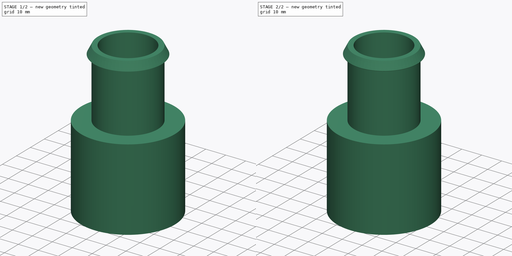
[diagram: build sequence overview — one tinted view per stage of 2, left to right]
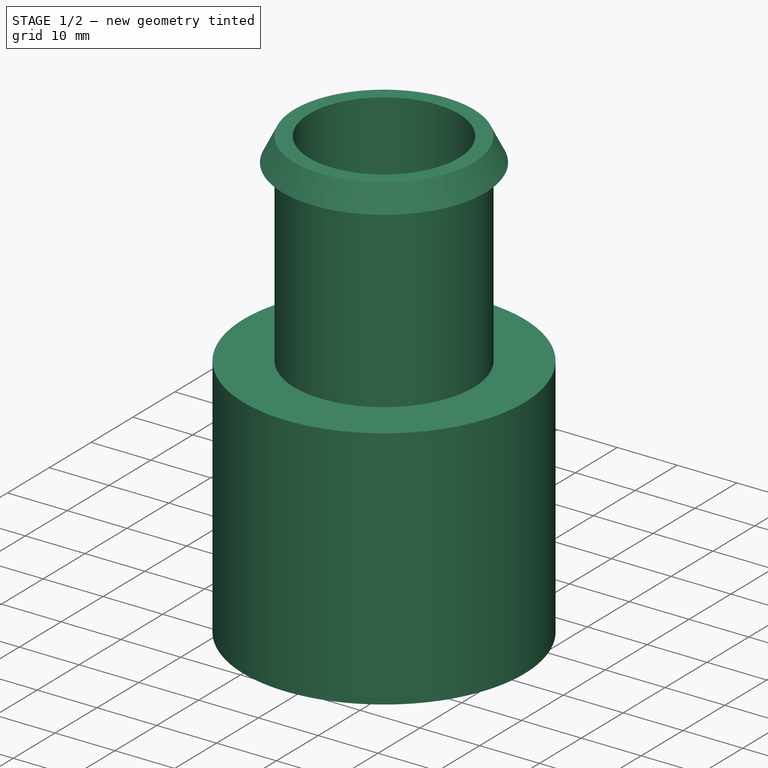
[diagram: stage 1 of 2 — iso view after this stage's code; geometry added in this stage tinted green]
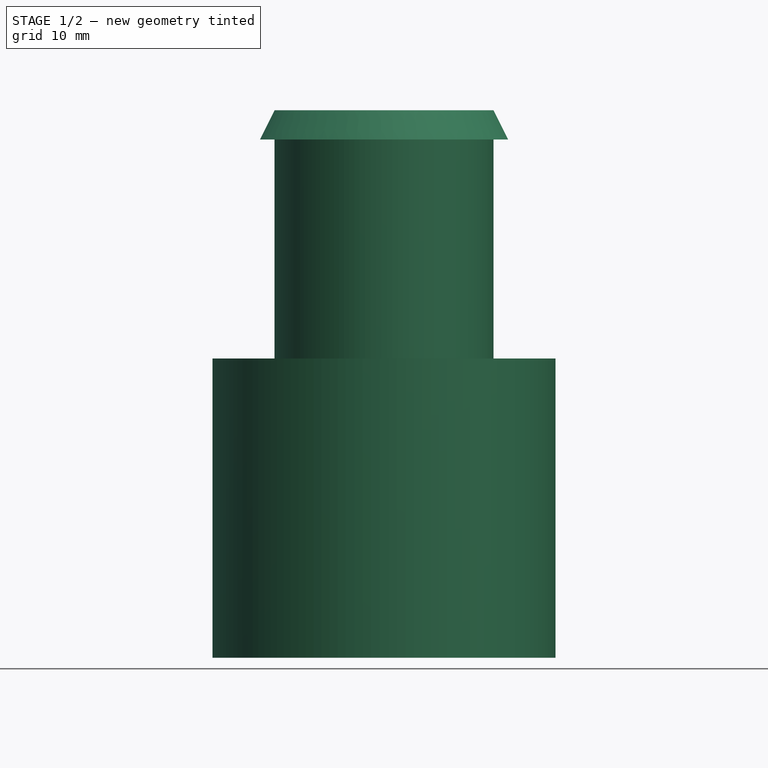
[diagram: stage 1 of 2 — front view after this stage's code; geometry added in this stage tinted green]
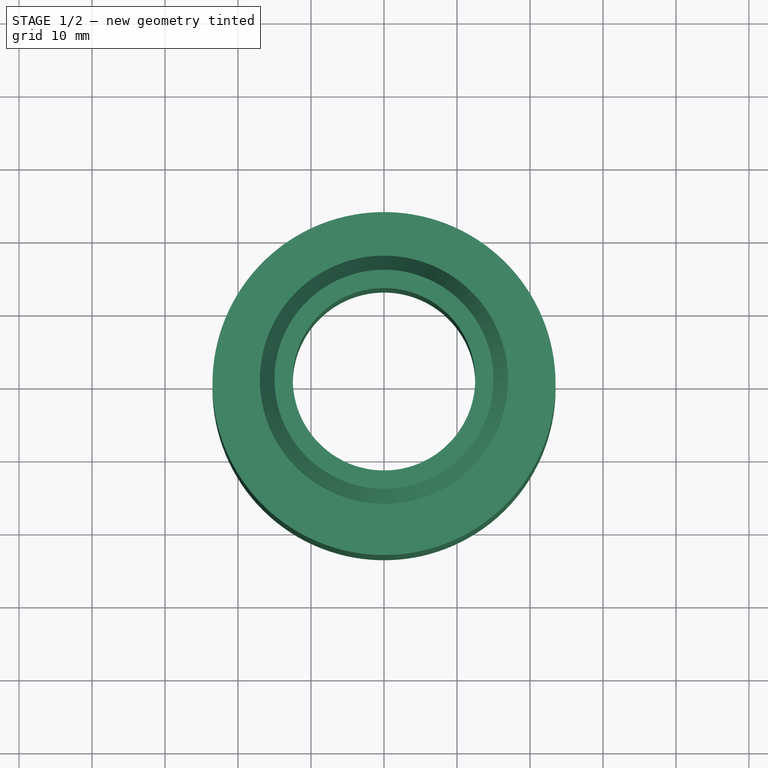
[diagram: stage 1 of 2 — top view after this stage's code; geometry added in this stage tinted green]
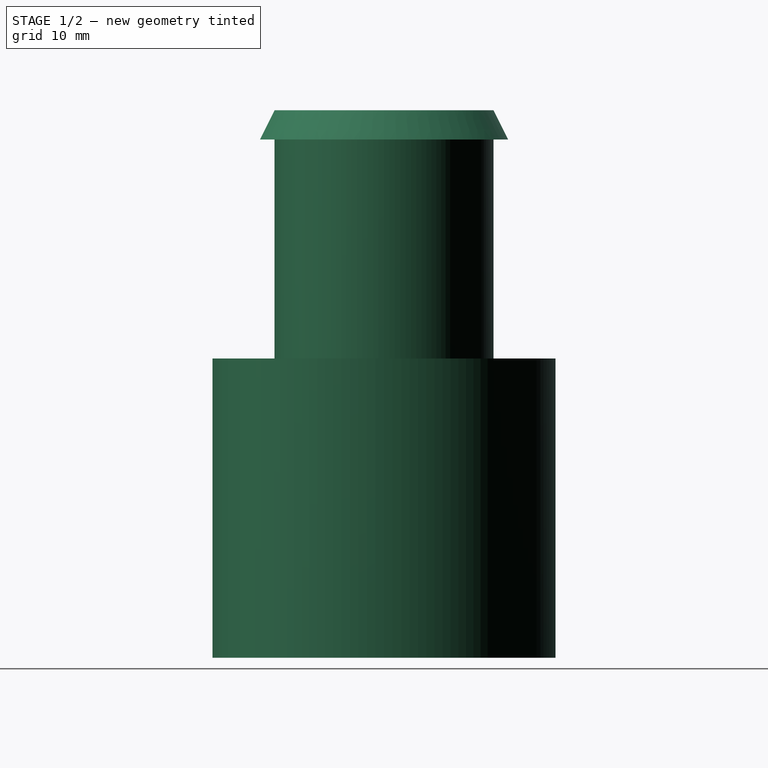
[diagram: stage 1 of 2 — right view after this stage's code; geometry added in this stage tinted green]
FCSTD DOCUMENT  (FreeCAD 0.19R24276 (Git))
Label: HoseAdapter
License: All rights reserved
LicenseURL: http://en.wikipedia.org/wiki/All_rights_reserved
objects: Sketcher::SketchObject×1, Spreadsheet::Sheet×1, PartDesign::Revolution×1, PartDesign::Fillet×1, PartDesign::Body×1, App::Part×1
note: 6 computed .brp shape members not serialized (recipe doc carries the construction recipe); baked Part::Feature solids carry a one-line shape summary decoded from their .brp

FEATURE [Sketcher::SketchObject] Sketch  label="Sketch_Adapter"
  FullyConstrained = true
  MapMode = 5
  Placement = pos=(0,0,0) rot=(1,0,0;1.5708rad)
  Support = -> [XZ_Plane001]
  expr: Constraints[30] = <<Parameters>>.PVCEndInternalFlangeHeight
  expr: Constraints[28] = <<Parameters>>.PVCEndInternalRadius
  expr: Constraints[21] = <<Parameters>>.HoseBarbLength
  expr: Constraints[25] = <<Parameters>>.PVCEndWallThickness
  expr: Constraints[29] = <<Parameters>>.HoseEndInternalRadius
  expr: Constraints[26] = <<Parameters>>.PVCEndInternalDepth
  expr: Constraints[24] = <<Parameters>>.HoseEndWallThickness
  expr: Constraints[20] = <<Parameters>>.HoseEndLength
  expr: Constraints[23] = <<Parameters>>.HoseEndWallThickness
  expr: Constraints[22] = <<Parameters>>.HoseBarbHeight
  sketch-geometry (11):
    g0: LineSegment StartX=15 StartY=75 StartZ=0 EndX=17 EndY=71 EndZ=0
    g1: LineSegment StartX=17 StartY=71 StartZ=0 EndX=15 EndY=71 EndZ=0
    g2: LineSegment StartX=15 StartY=71 StartZ=0 EndX=15 EndY=41 EndZ=0
    g3: LineSegment StartX=15 StartY=41 StartZ=0 EndX=23.5 EndY=41 EndZ=0
    g4: LineSegment StartX=23.5 StartY=41 StartZ=0 EndX=23.5 EndY=0 EndZ=0
    g5: LineSegment StartX=23.5 StartY=0 StartZ=0 EndX=20.5 EndY=0 EndZ=0
    g6: LineSegment StartX=20.5 StartY=0 StartZ=0 EndX=20.5 EndY=26 EndZ=0
    g7: LineSegment StartX=20.5 StartY=26 StartZ=0 EndX=18.5 EndY=26 EndZ=0
    g8: LineSegment StartX=18.5 StartY=26 StartZ=0 EndX=12.5 EndY=39 EndZ=0
    g9: LineSegment StartX=12.5 StartY=39 StartZ=0 EndX=12.5 EndY=75 EndZ=0
    g10: LineSegment StartX=12.5 StartY=75 StartZ=0 EndX=15 EndY=75 EndZ=0
  constraints (33):
    c: Coincident(g0,g1)
    c: Coincident(g1,g2)
    c: Vertical(g2)
    c: Coincident(g2,g3)
    c: Horizontal(g3)
    c: Vertical(g4)
    c: Coincident(g4,g5)
    c: Coincident(g5,g6)
    c: Vertical(g6)
    c: Coincident(g6,g7)
    c: Coincident(g7,g8)
    c: Coincident(g8,g9)
    c: Vertical(g9)
    c: Coincident(g9,g10)
    c: Coincident(g10,g0)
    c: Horizontal(g10)
    c: Horizontal(g1)
    c: Horizontal(g7)
    c: Horizontal(g5)
    c: DistanceY(g4,g0) = 75
    c: DistanceY(g2,g9) = 34
    c: DistanceY(g1,g0) = 4
    c: DistanceX(g1,g1) = 2
    c: DistanceX(g8,g2) = 2.5
    c: DistanceX(g9,g0) = 2.5
    c: DistanceX(g5,g4) = 3
    c: DistanceY(g5,g6) = 26
    c: Coincident(g3,g4)
    c: DistanceX(g-1,g5) = 20.5
    c: DistanceX(g-1,g9) = 12.5
    c: DistanceX(g7,g6) = 2
    c: DistanceY(g8,g2) = 2
    c: DistanceY(g-1,g5) = 0
FEATURE [Spreadsheet::Sheet] Spreadsheet001  label="Parameters"
  cells = A1=HoseEndInternalRadius; B1(HoseEndInternalRadius)=12.5; A2=PVCEndInternalRadius; B2(PVCEndInternalRadius)=20.5; A3=PVCEndWallThickness; B3(PVCEndWallThickness)=3; A4=HoseEndWallThickness; B4(HoseEndWallThickness)=2.5; A5=HoseBarbHeight; B5(HoseBarbHeight)=2; A6=HoseBarbLength; B6(HoseBarbLength)=4; A7=HoseEndLength; B7(HoseEndLength)=34; A8=PVCEndLength; B8(PVCEndLength)=31; A9=PVCEndInternalDepth; B9(PVCEndInternalDepth)=26; A10=PVCEndInternalFlangeHeight; B10(PVCEndInternalFlangeHeight)=2; A11=PVCEndInternalFlangeDepth; B11(PVCEndInternalFlangeDepth)=4
FEATURE [PartDesign::Revolution] Revolution
  Angle = 360
  Axis = (0,-2e-16,1)
  Base = (0,0,0)
  Placement = pos=(0,0,0) rot=(1,0,0;1.5708rad)
  Profile = -> Sketch
  ReferenceAxis = -> Sketch [V_Axis]
  Reversed = true
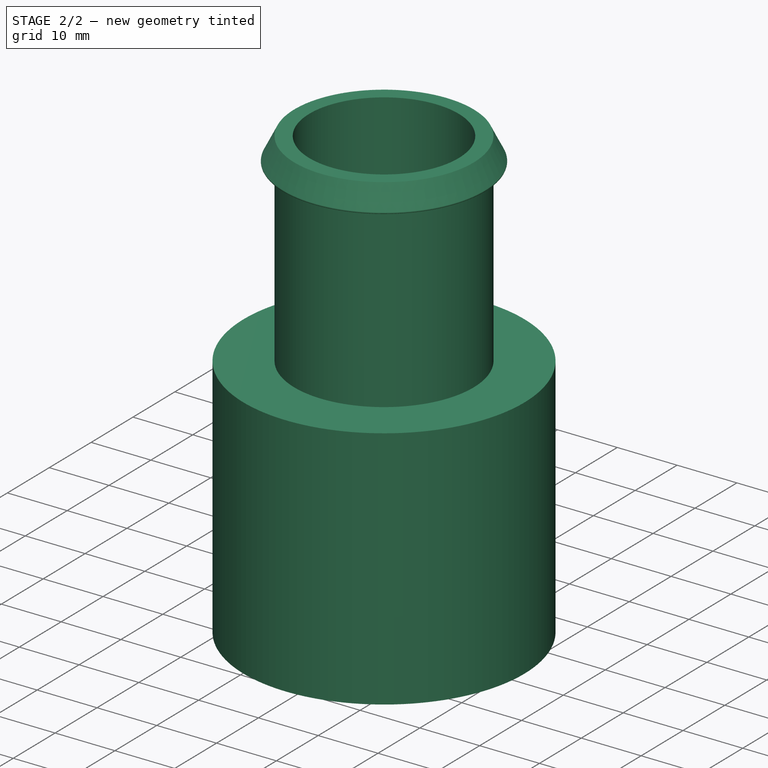
[diagram: stage 2 of 2 — iso view after this stage's code; geometry added in this stage tinted green]
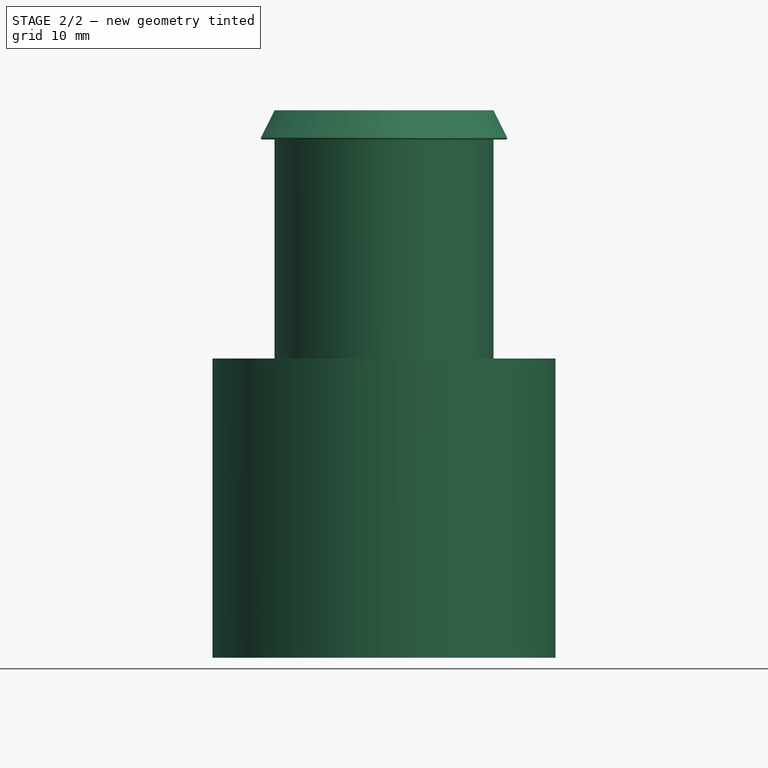
[diagram: stage 2 of 2 — front view after this stage's code; geometry added in this stage tinted green]
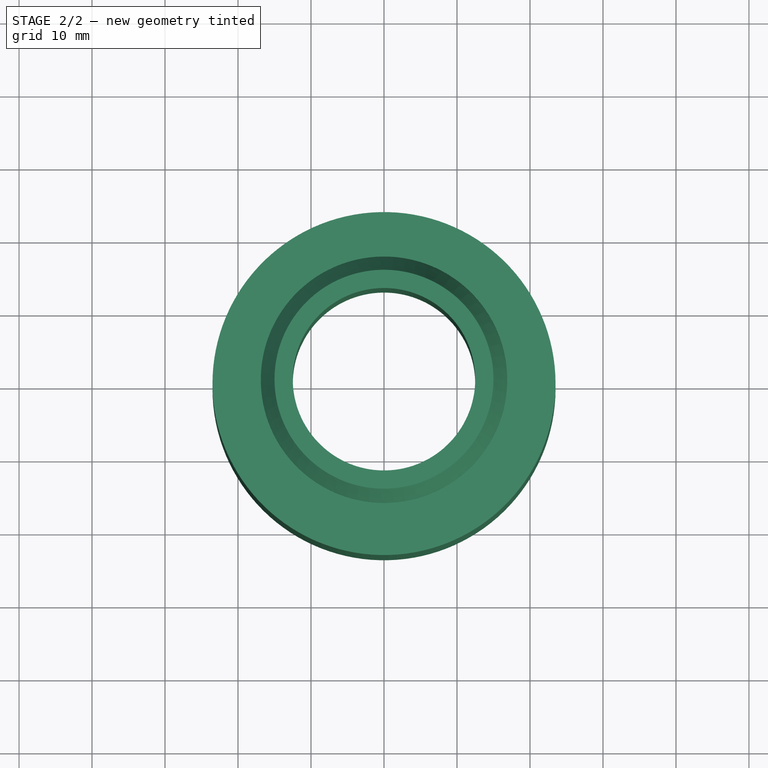
[diagram: stage 2 of 2 — top view after this stage's code; geometry added in this stage tinted green]
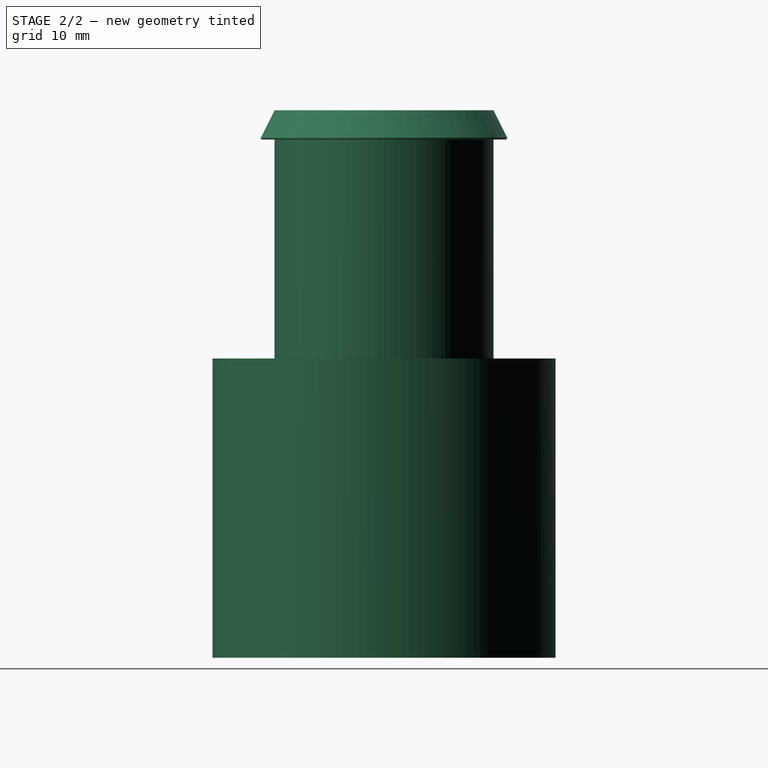
[diagram: stage 2 of 2 — right view after this stage's code; geometry added in this stage tinted green]
FEATURE [PartDesign::Fillet] Fillet
  Base = -> Revolution [Edge2]
  BaseFeature = -> Revolution
  Placement = pos=(0,0,0) rot=(1,0,0;1.5708rad)
  Radius = 0.2
  SupportTransform = false
FEATURE [PartDesign::Body] Body
  Group = -> [Sketch,Revolution,Fillet]
  Origin = -> Origin001
  Tip = -> Fillet
FEATURE [App::Part] Part  label="Part_Adapter"
  Group = -> [Body]
  Origin = -> Origin
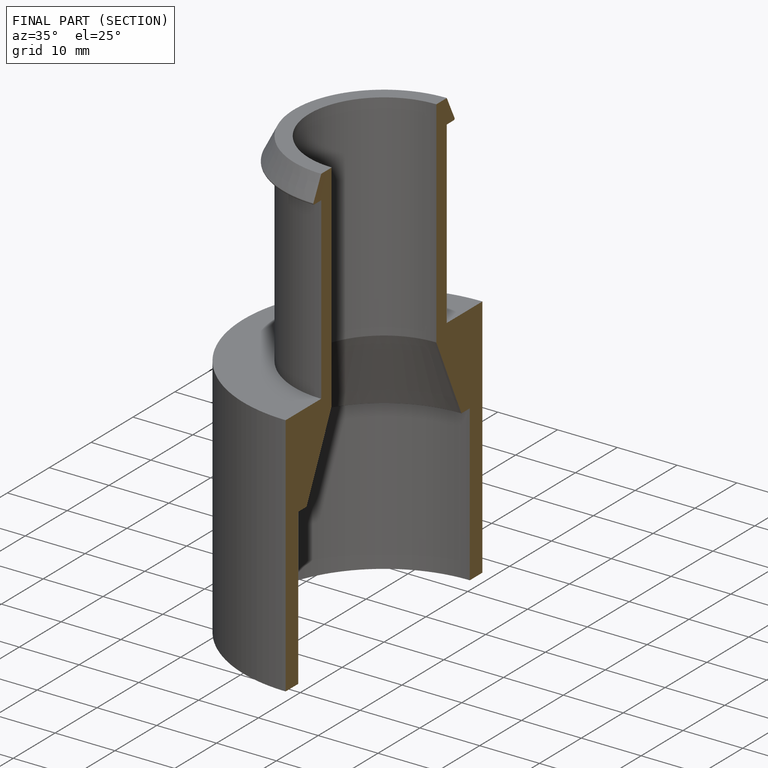
[diagram: finished part — half-section view (interior)]
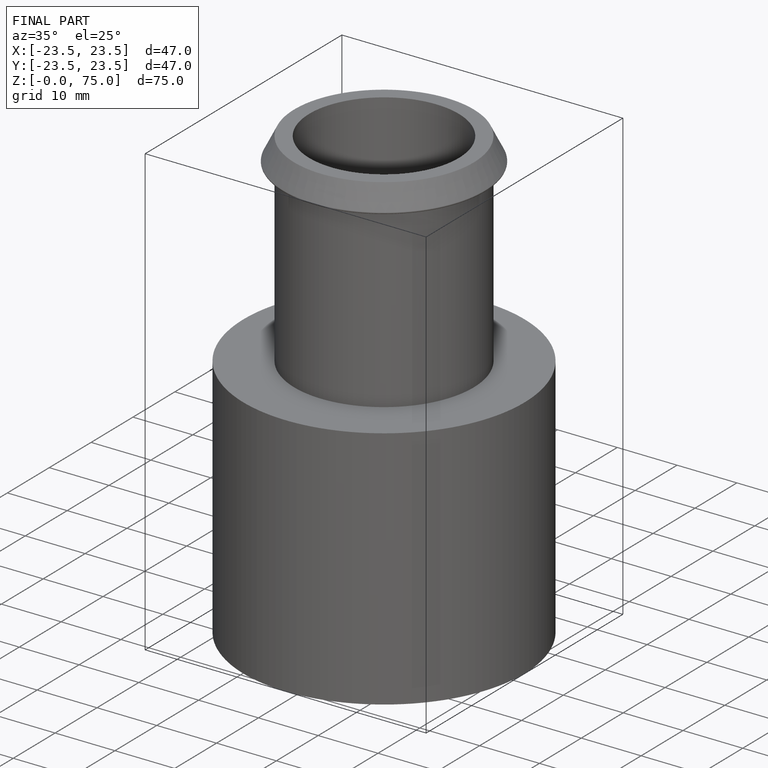
[diagram: finished part — iso view with bounding-box wireframe]
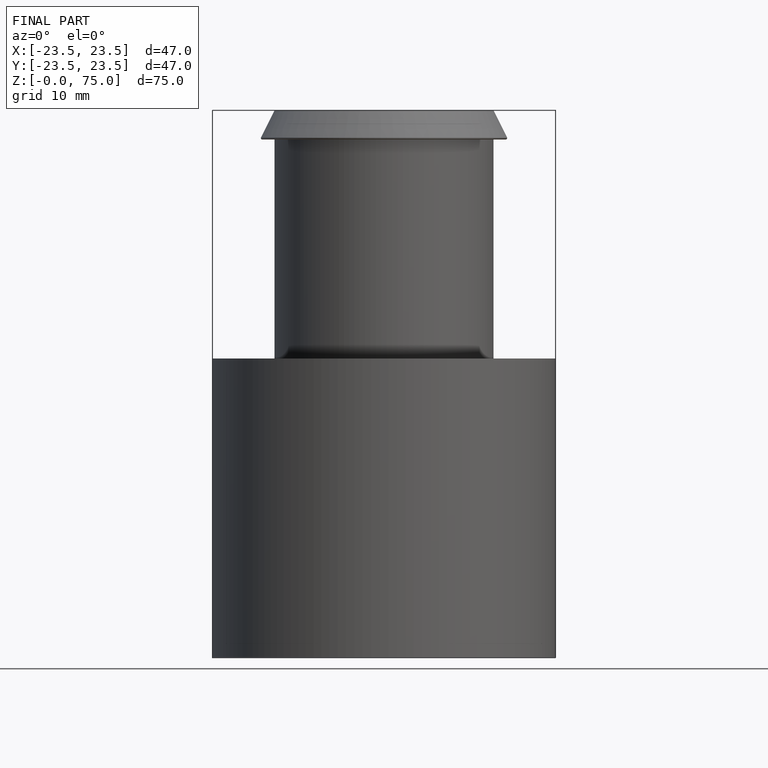
[diagram: finished part — front view with bounding-box wireframe]
